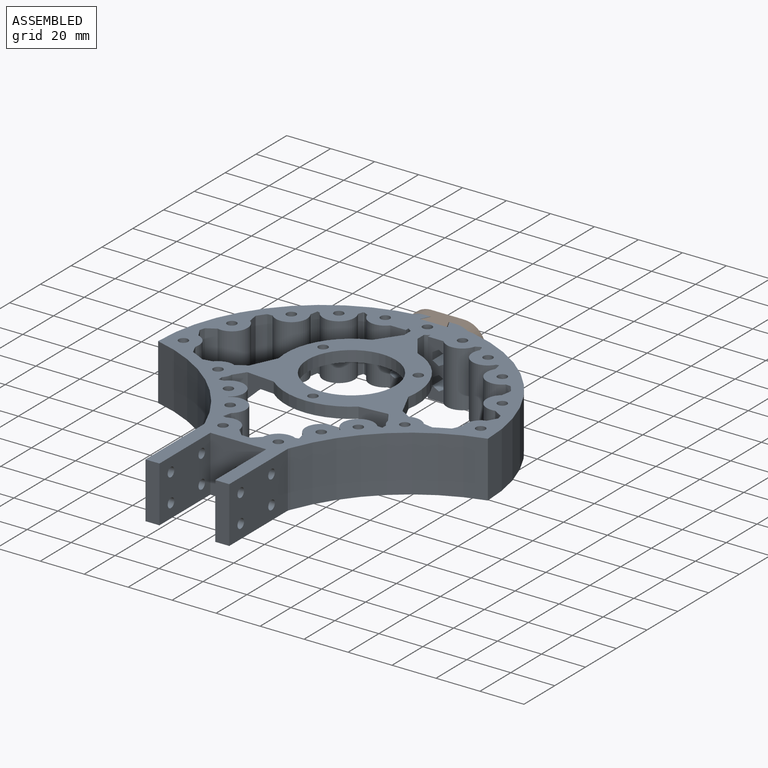
[diagram: assembled view]
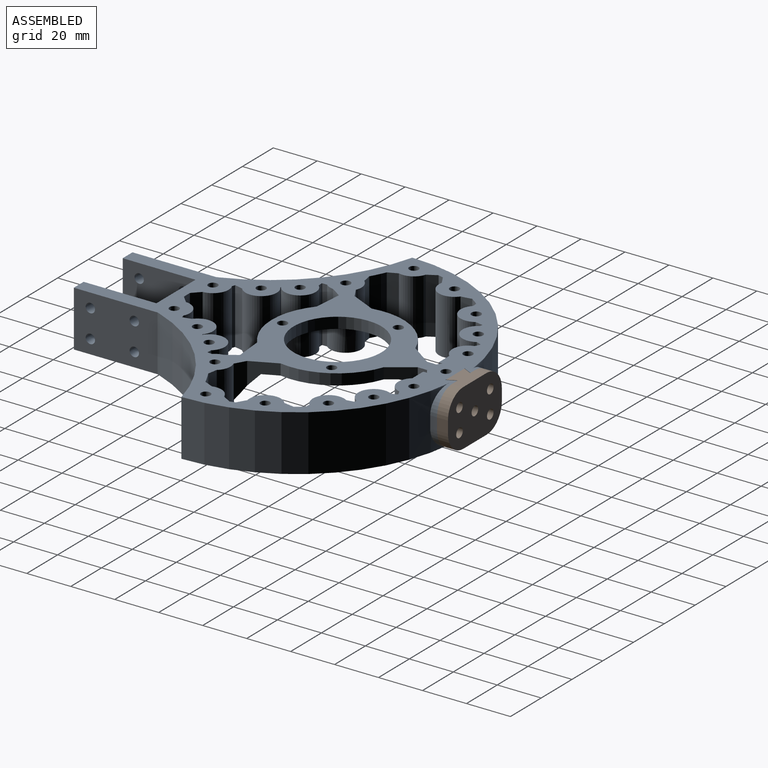
[diagram: assembled view, second angle]
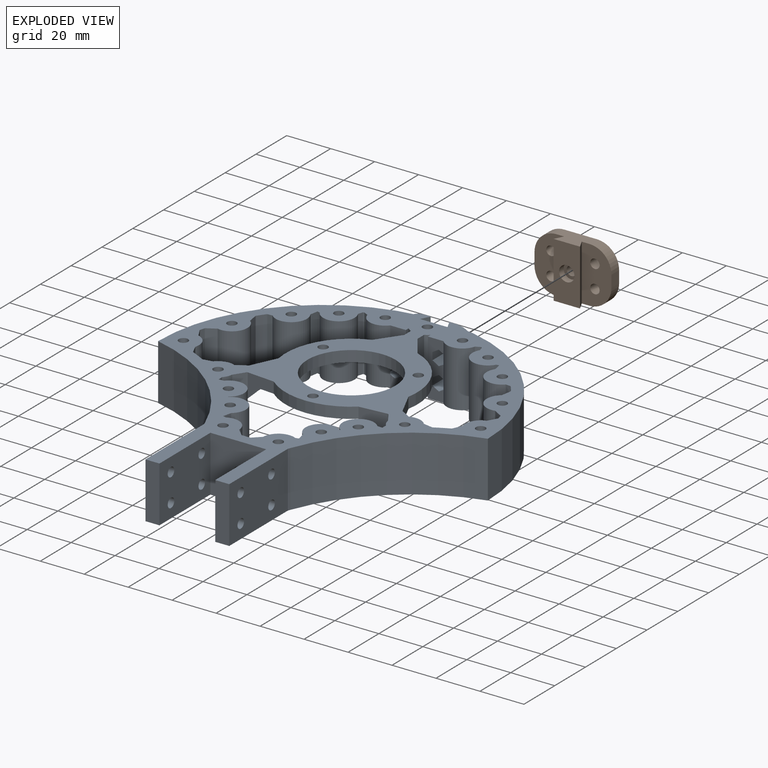
[diagram: exploded view]
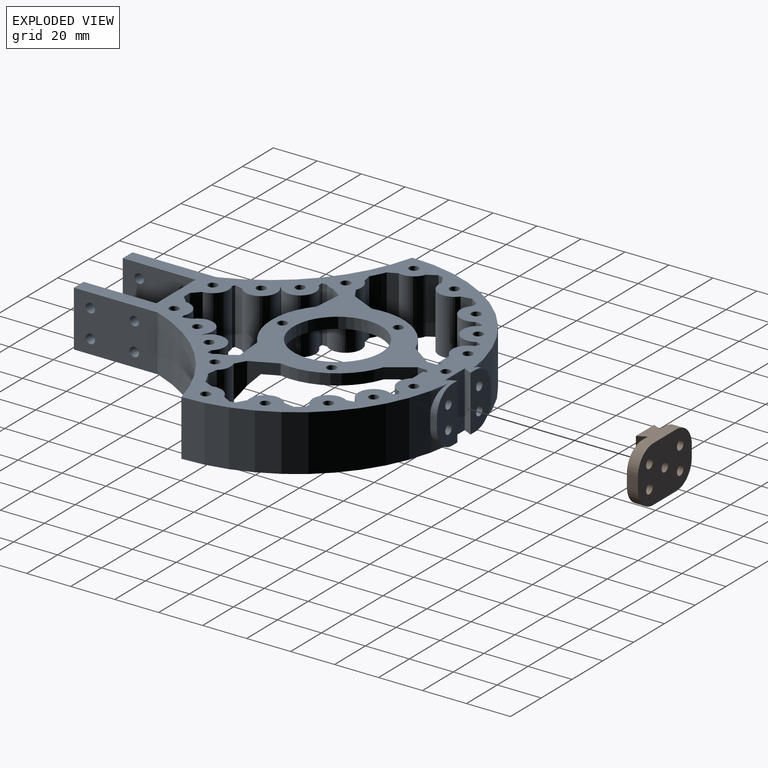
[diagram: exploded view, second angle]
ASSEMBLY  parts=2 mates=3
PART A: 183 faces, bbox 153x167.1x28.4 mm
  f0: plane 164.1x150mm, normal (0,0,1), area 6359.7mm2, adj f2,f3,f8,f9,f10,f11,f12,f14
  f1: plane 164.1x150mm, normal (0,0,-1), area 4406.8mm2, adj f2,f3,f8,f9,f10,f11,f12,f14
  f2: plane 25.4x13.25mm, normal (0,1,0), area 265.9mm2, adj f0,f1,f6,f7,f173,f176,f179,f182
  f3: cylinder r=75mm len=74.62mm, axis (0,0,-1), area 2587.6mm2, adj f0,f1,f31,f173,f179,f182
  f4: cylinder r=2.1mm len=6mm, axis (0,-1,0), area 79.2mm2, adj f170,f175
  f5: cylinder r=2.1mm len=6mm, axis (0,-1,0), area 79.2mm2, adj f169,f175
  f6: cylinder r=2.1mm len=6mm, axis (0,-1,0), area 79.2mm2, adj f2,f164
  f7: cylinder r=2.1mm len=6mm, axis (0,-1,0), area 79.2mm2, adj f2,f162
  f8: cylinder r=7.12mm len=25.4mm, axis (0,0,1), area 396.2mm2, adj f0,f1,f106,f153,f167,f171
  f9: cylinder r=7.12mm len=25.4mm, axis (0,0,1), area 188.6mm2, adj f0,f1,f110,f118,f126,f146,f159
  f10: cylinder r=7.12mm len=25.4mm, axis (0,0,1), area 396.2mm2, adj f0,f1,f105,f148,f163,f166
  f11: cylinder r=75mm len=74.62mm, axis (0,0,-1), area 2587.6mm2, adj f0,f1,f17,f174,f180,f181
  f12: cylinder r=7.12mm len=25.4mm, axis (0,0,1), area 439.7mm2, adj f0,f1,f89,f99,f116,f127,f136
  f13: cylinder r=2.12mm len=5mm, axis (0,-1,0), area 66.8mm2, adj f16,f33
  f14: plane 28.37x6.46mm, normal (0.69,0.72,0), area 114mm2, adj f0,f1,f16,f73,f93
  f15: plane 28.37x6.46mm, normal (-0.69,0.72,0), area 114mm2, adj f0,f1,f16,f76,f92
  f16: plane 25.4x7mm, normal (0,1,0), area 97.6mm2, adj f0,f1,f13,f14,f15,f92,f93
  f17: cylinder r=80mm len=55.55mm, axis (0,0,-1), area 1954.9mm2, adj f0,f1,f11,f75
  f18: cylinder r=85mm len=25.4mm, axis (0,0,-1), area 187.8mm2, adj f0,f1,f89,f90
  f19: cylinder r=70mm len=25.4mm, axis (0,0,-1), area 62.9mm2, adj f0,f1,f87,f91
  f20: cylinder r=85mm len=25.4mm, axis (0,0,-1), area 3.2mm2, adj f0,f1,f98,f99
  f21: cylinder r=70mm len=25.4mm, axis (0,0,-1), area 14.4mm2, adj f0,f1,f106,f108
  f22: cylinder r=70mm len=25.4mm, axis (0,0,-1), area 116.2mm2, adj f0,f1,f88,f109
  f23: cylinder r=85mm len=25.4mm, axis (0,0,-1), area 3.2mm2, adj f0,f1,f100,f101
  f24: cylinder r=70mm len=25.4mm, axis (0,0,-1), area 62.9mm2, adj f0,f1,f83,f84
  f25: cylinder r=70mm len=25.4mm, axis (0,0,-1), area 116.2mm2, adj f0,f1,f85,f102
  f26: cylinder r=70mm len=25.4mm, axis (0,0,-1), area 14.4mm2, adj f0,f1,f103,f105
  f27: plane 38.1x25.4mm, normal (-1,0,0), area 911mm2, adj f0,f1,f32,f40,f41,f42,f43,f74
  f28: plane 33.1x25.4mm, normal (1,0,0), area 784mm2, adj f0,f1,f32,f33,f40,f41,f42,f43
  f29: plane 33.1x25.4mm, normal (-1,0,0), area 784mm2, adj f0,f1,f33,f34,f36,f37,f38,f39
  f30: plane 38.1x25.4mm, normal (1,0,0), area 911mm2, adj f0,f1,f34,f36,f37,f38,f39,f75
  f31: cylinder r=80mm len=55.55mm, axis (0,0,-1), area 1954.9mm2, adj f0,f1,f3,f74
  f32: plane 25.4x6.35mm, normal (0,-1,0), area 161.3mm2, adj f0,f1,f27,f28
  f33: plane 25.4x25.4mm, normal (0,-1,0), area 631mm2, adj f0,f1,f13,f28,f29
  f34: plane 25.4x6.35mm, normal (0,-1,0), area 161.3mm2, adj f0,f1,f29,f30
  f35: cylinder r=85mm len=25.4mm, axis (0,0,-1), area 187.8mm2, adj f0,f1,f81,f82
  f36: cylinder r=2.12mm len=6.35mm, axis (1,0,0), area 84.8mm2, adj f29,f30
  f37: cylinder r=2.12mm len=6.35mm, axis (1,0,0), area 84.8mm2, adj f29,f30
  f38: cylinder r=2.12mm len=6.35mm, axis (1,0,0), area 84.8mm2, adj f29,f30
  f39: cylinder r=2.12mm len=6.35mm, axis (1,0,0), area 84.8mm2, adj f29,f30
  f40: cylinder r=2.12mm len=6.35mm, axis (1,0,0), area 84.8mm2, adj f27,f28
  f41: cylinder r=2.12mm len=6.35mm, axis (1,0,0), area 84.8mm2, adj f27,f28
  f42: cylinder r=2.12mm len=6.35mm, axis (1,0,0), area 84.8mm2, adj f27,f28
  f43: cylinder r=2.12mm len=6.35mm, axis (1,0,0), area 84.8mm2, adj f27,f28
  f44: cylinder r=2.12mm len=25.4mm, axis (0,0,1), area 339.1mm2, adj f0,f1
  f45: cylinder r=2.12mm len=25.4mm, axis (0,0,1), area 339.1mm2, adj f0,f1
  f46: cylinder r=7.12mm len=25.4mm, axis (0,0,1), area 570.2mm2, adj f0,f1,f103,f104
  f47: cylinder r=2.12mm len=25.4mm, axis (0,0,1), area 339.1mm2, adj f0,f1
  f48: cylinder r=7.12mm len=25.4mm, axis (0,0,1), area 531.9mm2, adj f0,f1,f80,f102
  f49: cylinder r=2.12mm len=25.4mm, axis (0,0,1), area 339.1mm2, adj f0,f1
  f50: cylinder r=7.12mm len=25.4mm, axis (0,0,1), area 493.6mm2, adj f0,f1,f84,f85
  f51: cylinder r=2.12mm len=25.4mm, axis (0,0,1), area 339.1mm2, adj f0,f1
  f52: cylinder r=7.12mm len=25.4mm, axis (0,0,1), area 283.9mm2, adj f0,f1,f82,f83
  f53: cylinder r=2.12mm len=25.4mm, axis (0,0,1), area 339.1mm2, adj f0,f1
  f54: cylinder r=7.12mm len=25.4mm, axis (0,0,1), area 439.7mm2, adj f0,f1,f81,f101,f112,f128,f135
  f55: cylinder r=2.12mm len=25.4mm, axis (0,0,1), area 339.1mm2, adj f0,f1
  f56: cylinder r=7.12mm len=25.4mm, axis (0,0,1), area 619.2mm2, adj f0,f1,f95,f100
  f57: cylinder r=2.12mm len=25.4mm, axis (0,0,1), area 339.1mm2, adj f0,f1
  f58: cylinder r=7.12mm len=25.4mm, axis (0,0,1), area 493.6mm2, adj f0,f1,f87,f88
  f59: cylinder r=2.12mm len=25.4mm, axis (0,0,1), area 339.1mm2, adj f0,f1
  f60: cylinder r=7.12mm len=25.4mm, axis (0,0,1), area 531.9mm2, adj f0,f1,f86,f109
  f61: cylinder r=2.12mm len=25.4mm, axis (0,0,1), area 339.1mm2, adj f0,f1
  f62: cylinder r=7.12mm len=25.4mm, axis (0,0,1), area 570.2mm2, adj f0,f1,f107,f108
  f63: cylinder r=2.12mm len=25.4mm, axis (0,0,1), area 339.1mm2, adj f0,f1
  f64: cylinder r=2.12mm len=25.4mm, axis (0,0,1), area 339.1mm2, adj f0,f1
  f65: cylinder r=2.12mm len=25.4mm, axis (0,0,1), area 339.1mm2, adj f0,f1
  f66: cylinder r=7.12mm len=25.4mm, axis (0,0,1), area 619.2mm2, adj f0,f1,f97,f98
  f67: cylinder r=2.12mm len=25.4mm, axis (0,0,1), area 339.1mm2, adj f0,f1
  f68: cylinder r=7.12mm len=25.4mm, axis (0,0,1), area 283.9mm2, adj f0,f1,f90,f91
  f69: cylinder r=2.12mm len=25.4mm, axis (0,0,1), area 339.1mm2, adj f0,f1
  f70: cylinder r=7.12mm len=25.4mm, axis (0,0,1), area 572.8mm2, adj f0,f1,f95,f124
  f71: cylinder r=2.12mm len=25.4mm, axis (0,0,1), area 339.1mm2, adj f0,f1
  f72: cylinder r=2.12mm len=25.4mm, axis (0,0,1), area 339.1mm2, adj f0,f1
  f73: cylinder r=7.15mm len=25.4mm, axis (0,0,1), area 364.5mm2, adj f0,f1,f14,f94
  f74: cylinder r=7.15mm len=25.4mm, axis (0,0,1), area 28.9mm2, adj f0,f1,f27,f31
  f75: cylinder r=7.15mm len=25.4mm, axis (0,0,1), area 28.9mm2, adj f0,f1,f17,f30
  f76: cylinder r=7.15mm len=25.4mm, axis (0,0,1), area 364.5mm2, adj f0,f1,f15,f96
  f77: cylinder r=2.12mm len=25.4mm, axis (0,0,1), area 339.1mm2, adj f0,f1
  f78: cylinder r=7.12mm len=25.4mm, axis (0,0,1), area 572.8mm2, adj f0,f1,f97,f125
  f79: cylinder r=2.12mm len=25.4mm, axis (0,0,1), area 339.1mm2, adj f0,f1
  f80: plane 25.4x3.61mm, normal (0.98,-0.18,0), area 93.2mm2, adj f0,f1,f48,f104
  f81: plane 25.4x4.38mm, normal (-0.18,0.98,0), area 113mm2, adj f0,f1,f35,f54
  f82: plane 25.4x4.18mm, normal (0.91,0.41,0), area 116.7mm2, adj f0,f1,f35,f52
  f83: plane 25.4x4.18mm, normal (0.87,0.49,0), area 122.2mm2, adj f0,f1,f24,f52
  f84: plane 25.4x4.15mm, normal (0.51,-0.86,0), area 122.2mm2, adj f0,f1,f24,f50
  f85: plane 25.4x4.74mm, normal (0.99,0.17,0), area 122.2mm2, adj f0,f1,f25,f50
  f86: plane 25.4x3.61mm, normal (-0.98,-0.18,0), area 93.2mm2, adj f0,f1,f60,f107
  f87: plane 25.4x4.15mm, normal (-0.51,-0.86,0), area 122.2mm2, adj f0,f1,f19,f58
  f88: plane 25.4x4.74mm, normal (-0.99,0.17,0), area 122.2mm2, adj f0,f1,f22,f58
  f89: plane 25.4x4.38mm, normal (0.18,0.98,0), area 113mm2, adj f0,f1,f12,f18
  f90: plane 25.4x4.18mm, normal (-0.91,0.41,0), area 116.7mm2, adj f0,f1,f18,f68
  f91: plane 25.4x4.18mm, normal (-0.87,0.49,0), area 122.2mm2, adj f0,f1,f19,f68
  f92: cylinder r=3.5mm len=5.81mm, axis (0,-1,0), area 0mm2, adj f15,f16
  f93: cylinder r=3.5mm len=5.81mm, axis (0,-1,0), area 0mm2, adj f14,f16
  f94: plane 25.4x1.36mm, normal (0.31,0.95,0), area 36.3mm2, adj f0,f1,f73,f124
  f95: plane 25.4x0.43mm, normal (0.11,0.99,0), area 11mm2, adj f0,f1,f56,f70
  f96: plane 25.4x1.36mm, normal (-0.31,0.95,0), area 36.3mm2, adj f0,f1,f76,f125
  f97: plane 25.4x0.43mm, normal (-0.11,0.99,0), area 11mm2, adj f0,f1,f66,f78
  f98: plane 25.4x2.19mm, normal (0.06,1,0), area 55.7mm2, adj f0,f1,f20,f66
  f99: plane 25.4x2.19mm, normal (-1,0.04,0), area 55.7mm2, adj f0,f1,f12,f20
  f100: plane 25.4x2.19mm, normal (-0.06,1,0), area 55.7mm2, adj f0,f1,f23,f56
  f101: plane 25.4x2.19mm, normal (1,0.04,0), area 55.7mm2, adj f0,f1,f23,f54
  f102: plane 25.4x2.31mm, normal (0.06,-1,0), area 58.7mm2, adj f0,f1,f25,f48
  f103: plane 25.4x2.19mm, normal (0.95,-0.32,0), area 58.7mm2, adj f0,f1,f26,f46
  f104: plane 25.4x1.24mm, normal (-0.2,-0.98,0), area 32.2mm2, adj f0,f1,f46,f80
  f105: plane 25.4x2.07mm, normal (-0.45,-0.89,0), area 58.7mm2, adj f0,f1,f10,f26
  f106: plane 25.4x2.07mm, normal (0.45,-0.89,0), area 58.7mm2, adj f0,f1,f8,f21
  f107: plane 25.4x1.24mm, normal (0.2,-0.98,0), area 32.2mm2, adj f0,f1,f62,f86
  f108: plane 25.4x2.19mm, normal (-0.95,-0.32,0), area 58.7mm2, adj f0,f1,f21,f62
  f109: plane 25.4x2.31mm, normal (-0.06,-1,0), area 58.7mm2, adj f0,f1,f22,f60
  f110: plane 15.34x4.66mm, normal (-1,0,0), area 56.1mm2, adj f0,f9,f126,f134
  f111: cylinder r=30mm len=33.39mm, axis (0,0,1), area 209.3mm2, adj f0,f123,f133,f134
  f112: plane 15x4.8mm, normal (-0.5,0.87,0), area 69.8mm2, adj f0,f54,f128,f133
  f113: plane 11.18x0.36mm, normal (0.5,-0.87,0), area 4.6mm2, adj f0,f128,f129,f135
  f114: cylinder r=30mm len=38.55mm, axis (0,0,1), area 209.3mm2, adj f0,f123,f129,f130
  f115: plane 11.18x0.36mm, normal (-0.5,-0.87,0), area 4.6mm2, adj f0,f127,f130,f136
  f116: plane 15x4.8mm, normal (0.5,0.87,0), area 69.8mm2, adj f0,f12,f127,f131
  f117: cylinder r=30mm len=33.39mm, axis (0,0,1), area 209.3mm2, adj f0,f123,f131,f132
  f118: plane 15.34x4.66mm, normal (1,0,0), area 56.1mm2, adj f0,f9,f126,f132
  f119: cylinder r=2.12mm len=5mm, axis (0,0,1), area 66.8mm2, adj f0,f123
  f120: cylinder r=2.12mm len=5mm, axis (0,0,1), area 66.8mm2, adj f0,f123
  f121: cylinder r=20mm len=40mm, axis (0,0,1), area 628.3mm2, adj f0,f123
  f122: cylinder r=2.12mm len=5mm, axis (0,0,1), area 66.8mm2, adj f0,f123
  f123: plane 65.4x63.53mm, normal (0,0,-1), area 1700.9mm2, adj f111,f114,f117,f119,f120,f121,f122,f126
  f124: plane 25.4x3.83mm, normal (0.97,-0.23,0), area 99.9mm2, adj f0,f1,f70,f94
  f125: plane 25.4x3.83mm, normal (-0.97,-0.23,0), area 99.9mm2, adj f0,f1,f78,f96
  f126: cone r=17.12mm half-angle=45deg, axis (0,0,1), area 116.3mm2, adj f9,f110,f118,f123,f132,f134
  f127: cone r=7.12mm half-angle=45deg, axis (0,0,1), area 117.9mm2, adj f12,f115,f116,f123,f130,f131,f136
  f128: cone r=17.12mm half-angle=45deg, axis (0,0,1), area 117.9mm2, adj f54,f112,f113,f123,f129,f133,f135
  f129: plane 13.11x11.24mm, normal (-0.09,-1,0), area 81.4mm2, adj f0,f113,f114,f123,f128
  f130: plane 13.11x11.24mm, normal (0.09,-1,0), area 81.4mm2, adj f0,f114,f115,f123,f127
  f131: plane 11.68x10.3mm, normal (0.91,0.42,0), area 76.7mm2, adj f0,f116,f117,f123,f127
  f132: plane 11.3x10.75mm, normal (0.82,0.57,0), area 81.8mm2, adj f0,f117,f118,f123,f126
  f133: plane 11.68x10.3mm, normal (-0.91,0.42,0), area 76.7mm2, adj f0,f111,f112,f123,f128
  f134: plane 11.3x10.75mm, normal (-0.82,0.57,0), area 81.8mm2, adj f0,f110,f111,f123,f126
  f135: plane 15x4.77mm, normal (0.83,-0.55,0), area 75.8mm2, adj f0,f54,f113,f128
  f136: plane 15x4.77mm, normal (-0.83,-0.55,0), area 75.8mm2, adj f0,f12,f115,f127
  f137: plane 9x2.92mm, normal (-0.5,0,-0.87), area 30.3mm2, adj f141,f142,f148,f162
  f138: plane 9x2.92mm, normal (-0.5,0,0.87), area 30.3mm2, adj f142,f143,f148,f162
  f139: plane 9x2.92mm, normal (-0.5,0,-0.87), area 30.3mm2, adj f144,f145,f148,f164
  f140: plane 9x2.92mm, normal (-0.5,0,0.87), area 30.3mm2, adj f145,f147,f148,f164
  f141: plane 9x2.92mm, normal (0.5,0,-0.87), area 30.3mm2, adj f137,f148,f161,f162,f163
  f142: plane 9x3.37mm, normal (-1,0,0), area 30.3mm2, adj f137,f138,f148,f162
  f143: plane 9x2.92mm, normal (0.5,0,0.87), area 30.3mm2, adj f138,f148,f161,f162,f163
  f144: plane 9x2.92mm, normal (0.5,0,-0.87), area 30.3mm2, adj f139,f148,f164,f165,f166
  f145: plane 9x3.37mm, normal (-1,0,0), area 30.3mm2, adj f139,f140,f148,f164
  f146: plane 25.4x1.8mm, normal (1,0,0), area 45.7mm2, adj f0,f1,f9,f148
  f147: plane 9x2.92mm, normal (0.5,0,0.87), area 30.3mm2, adj f140,f148,f164,f165,f166
  f148: plane 25.4x7.09mm, normal (0,-1,0), area 127.6mm2, adj f0,f1,f10,f137,f138,f139,f140,f141
  f149: plane 9x2.92mm, normal (-0.5,0,-0.87), area 30.3mm2, adj f153,f155,f167,f168,f169
  f150: plane 9x2.92mm, normal (-0.5,0,0.87), area 30.3mm2, adj f153,f154,f167,f168,f169
  f151: plane 9x2.92mm, normal (-0.5,0,-0.87), area 30.3mm2, adj f153,f157,f170,f171,f172
  f152: plane 9x2.92mm, normal (-0.5,0,0.87), area 30.3mm2, adj f153,f156,f170,f171,f172
  f153: plane 25.4x7.09mm, normal (0,-1,0), area 127.6mm2, adj f0,f1,f8,f149,f150,f151,f152,f154
  f154: plane 9x2.92mm, normal (0.5,0,0.87), area 30.3mm2, adj f150,f153,f158,f169
  f155: plane 9x2.92mm, normal (0.5,0,-0.87), area 30.3mm2, adj f149,f153,f158,f169
  f156: plane 9x2.92mm, normal (0.5,0,0.87), area 30.3mm2, adj f152,f153,f160,f170
  f157: plane 9x2.92mm, normal (0.5,0,-0.87), area 30.3mm2, adj f151,f153,f160,f170
  f158: plane 9x3.37mm, normal (1,0,0), area 30.3mm2, adj f153,f154,f155,f169
  f159: plane 25.4x1.8mm, normal (-1,0,0), area 45.7mm2, adj f0,f1,f9,f153
  f160: plane 9x3.37mm, normal (1,0,0), area 30.3mm2, adj f153,f156,f157,f170
  f161: plane 9x3.37mm, normal (1,0,0), area 30.3mm2, adj f141,f143,f162,f163
  f162: plane 6.74x5.84mm, normal (0,-1,0), area 15.6mm2, adj f7,f137,f138,f141,f142,f143,f161
  f163: plane 4.33x0.83mm, normal (0,1,0), area 3.2mm2, adj f10,f141,f143,f161
  f164: plane 6.74x5.84mm, normal (0,-1,0), area 15.6mm2, adj f6,f139,f140,f144,f145,f147,f165
  f165: plane 9x3.37mm, normal (1,0,0), area 30.3mm2, adj f144,f147,f164,f166
  f166: plane 4.33x0.83mm, normal (0,1,0), area 3.2mm2, adj f10,f144,f147,f165
  f167: plane 4.33x0.83mm, normal (0,1,0), area 3.2mm2, adj f8,f149,f150,f168
  f168: plane 9x3.37mm, normal (-1,0,0), area 30.3mm2, adj f149,f150,f167,f169
  f169: plane 6.74x5.84mm, normal (0,-1,0), area 15.6mm2, adj f5,f149,f150,f154,f155,f158,f168
  f170: plane 6.74x5.84mm, normal (0,-1,0), area 15.6mm2, adj f4,f151,f152,f156,f157,f160,f172
  f171: plane 4.33x0.83mm, normal (0,1,0), area 3.2mm2, adj f8,f151,f152,f172
  f172: plane 9x3.37mm, normal (-1,0,0), area 30.3mm2, adj f151,f152,f170,f171
  f173: plane 5.4x3.07mm, normal (-1,0,0), area 16.6mm2, adj f2,f3,f179,f182
  f174: plane 5.4x3.07mm, normal (1,0,0), area 16.6mm2, adj f11,f175,f180,f181
  f175: plane 25.4x13.25mm, normal (0,1,0), area 265.9mm2, adj f0,f1,f4,f5,f174,f178,f180,f181
  f176: plane 25.4x4mm, normal (0.89,-0.45,0), area 113.6mm2, adj f0,f1,f2,f177
  f177: plane 25.4x12.5mm, normal (0,1,0), area 317.5mm2, adj f0,f1,f176,f178
  f178: plane 25.4x4mm, normal (-0.89,-0.45,0), area 113.6mm2, adj f0,f1,f175,f177
  f179: cylinder r=10mm len=10mm, axis (0,-1,0), area 34.9mm2, adj f1,f2,f3,f173
  f180: cylinder r=10mm len=10mm, axis (0,1,0), area 34.9mm2, adj f1,f11,f174,f175
  f181: cylinder r=10mm len=10mm, axis (0,-1,0), area 34.9mm2, adj f0,f11,f174,f175
  f182: cylinder r=10mm len=10mm, axis (0,1,0), area 34.9mm2, adj f0,f2,f3,f173
PART B: 21 faces, bbox 35x25.4x9 mm
  f0: cylinder r=2.12mm len=6mm, axis (0,0,1), area 80.1mm2, adj f1,f15
  f1: plane 35x25.4mm, normal (0,0,-1), area 732.2mm2, adj f0,f4,f8,f9,f10,f11,f12,f13
  f2: plane 25.4x13.5mm, normal (0,0,1), area 271.6mm2, adj f4,f5,f9,f10,f13,f14,f17,f19
  f3: plane 25.4x13.5mm, normal (0,0,1), area 271.6mm2, adj f7,f8,f9,f10,f11,f12,f18,f20
  f4: plane 5.4x5mm, normal (1,0,0), area 27mm2, adj f1,f2,f17,f19
  f5: plane 25.4x4mm, normal (0.89,0,-0.45), area 113.6mm2, adj f2,f6,f9,f10
  f6: plane 25.4x12mm, normal (0,0,1), area 266.3mm2, adj f5,f7,f9,f10,f16
  f7: plane 25.4x4mm, normal (-0.89,0,-0.45), area 113.6mm2, adj f3,f6,f9,f10
  f8: plane 5.4x5mm, normal (-1,0,0), area 27mm2, adj f1,f3,f18,f20
  f9: plane 15x9mm, normal (0,-1,0), area 115mm2, adj f1,f2,f3,f5,f6,f7,f19,f20
  f10: plane 15x9mm, normal (0,1,0), area 115mm2, adj f1,f2,f3,f5,f6,f7,f17,f18
  f11: cylinder r=2.12mm len=5mm, axis (0,0,1), area 66.8mm2, adj f1,f3
  f12: cylinder r=2.12mm len=5mm, axis (0,0,1), area 66.8mm2, adj f1,f3
  f13: cylinder r=2.12mm len=5mm, axis (0,0,1), area 66.8mm2, adj f1,f2
  f14: cylinder r=2.12mm len=5mm, axis (0,0,1), area 66.8mm2, adj f1,f2
  f15: plane 7x7mm, normal (0,0,1), area 24.3mm2, adj f0,f16
  f16: cylinder r=3.5mm len=7mm, axis (0,0,1), area 66mm2, adj f6,f15
  f17: cylinder r=10mm len=10mm, axis (0,0,1), area 78.5mm2, adj f1,f2,f4,f10
  f18: cylinder r=10mm len=10mm, axis (0,0,-1), area 78.5mm2, adj f1,f3,f8,f10
  f19: cylinder r=10mm len=10mm, axis (0,0,-1), area 78.5mm2, adj f1,f2,f4,f9
  f20: cylinder r=10mm len=10mm, axis (0,0,1), area 78.5mm2, adj f1,f3,f8,f9
PLACE A t=(-4.83,-6.57,-14.75)mm fixed
PLACE B rot(axis=(1,0,0),90deg) t=(-4.83,69.43,-14.75)mm
MATE planar B.f0 <-> A.f13  axis (0,-1,0) through (-4.83,65.43,-14.75)mm
MATE planar A.f174 <-> B.f4  axis (1,0,0) through (12.67,67.89,-14.75)mm
MATE planar B.f10 <-> A.f0  axis (0,0,1) through (-4.83,70.32,-2.05)mm
